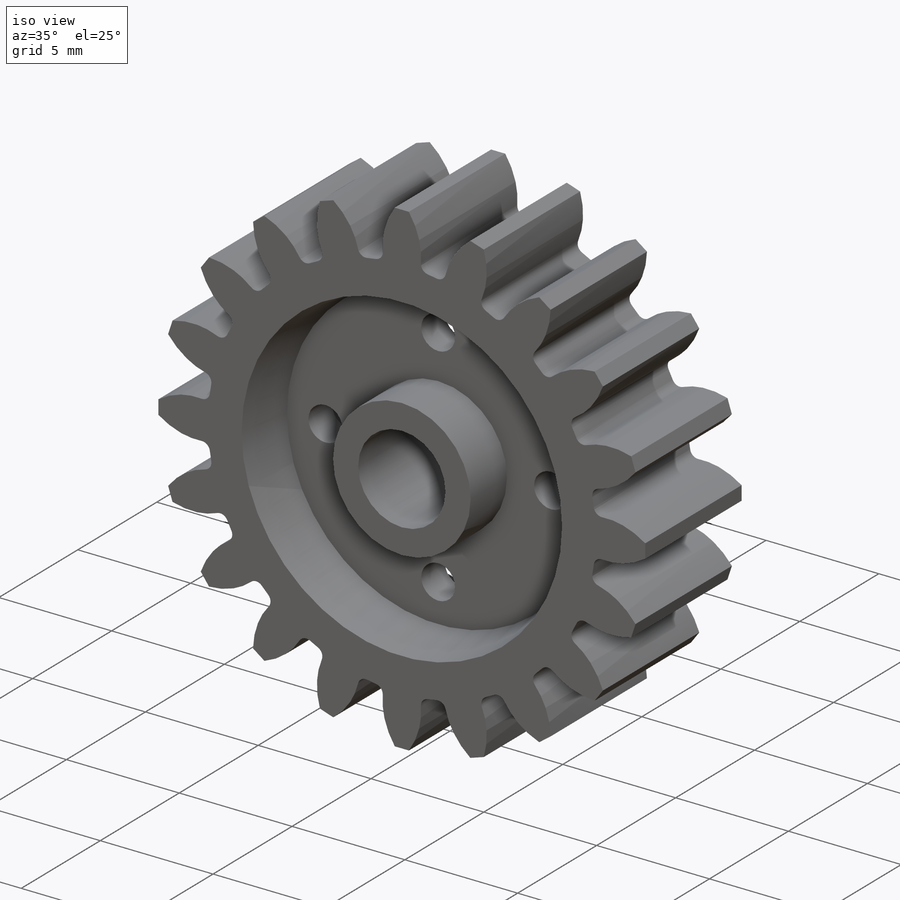
[diagram: iso view]
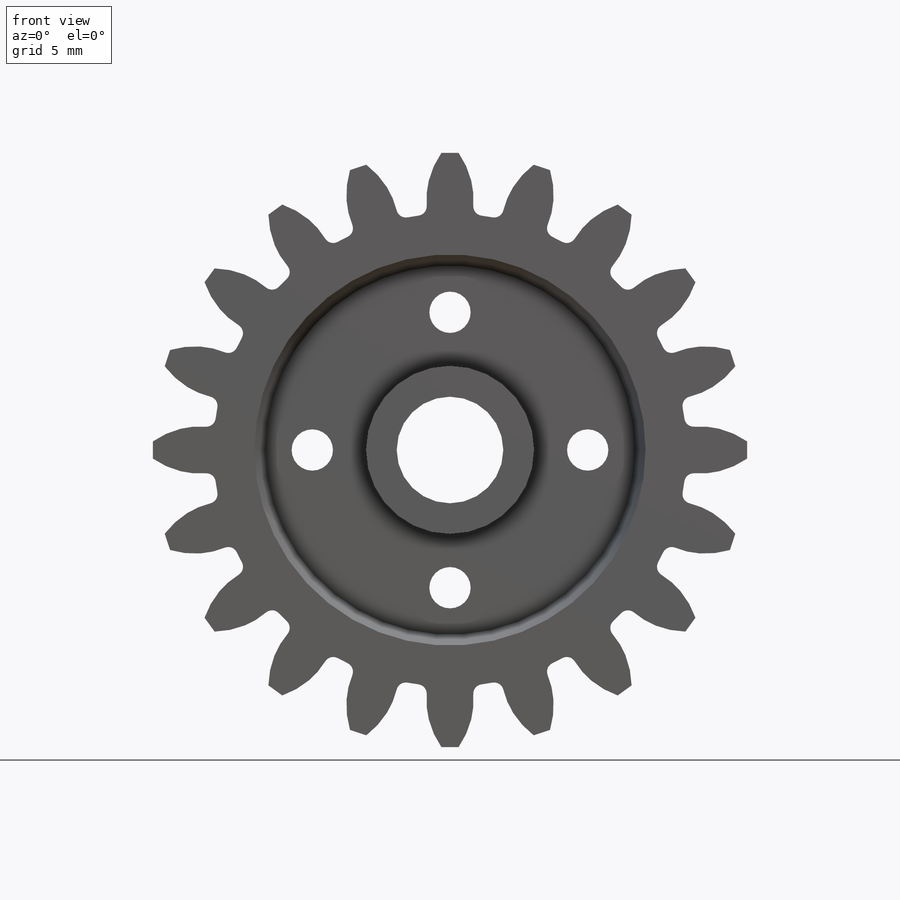
[diagram: front view]
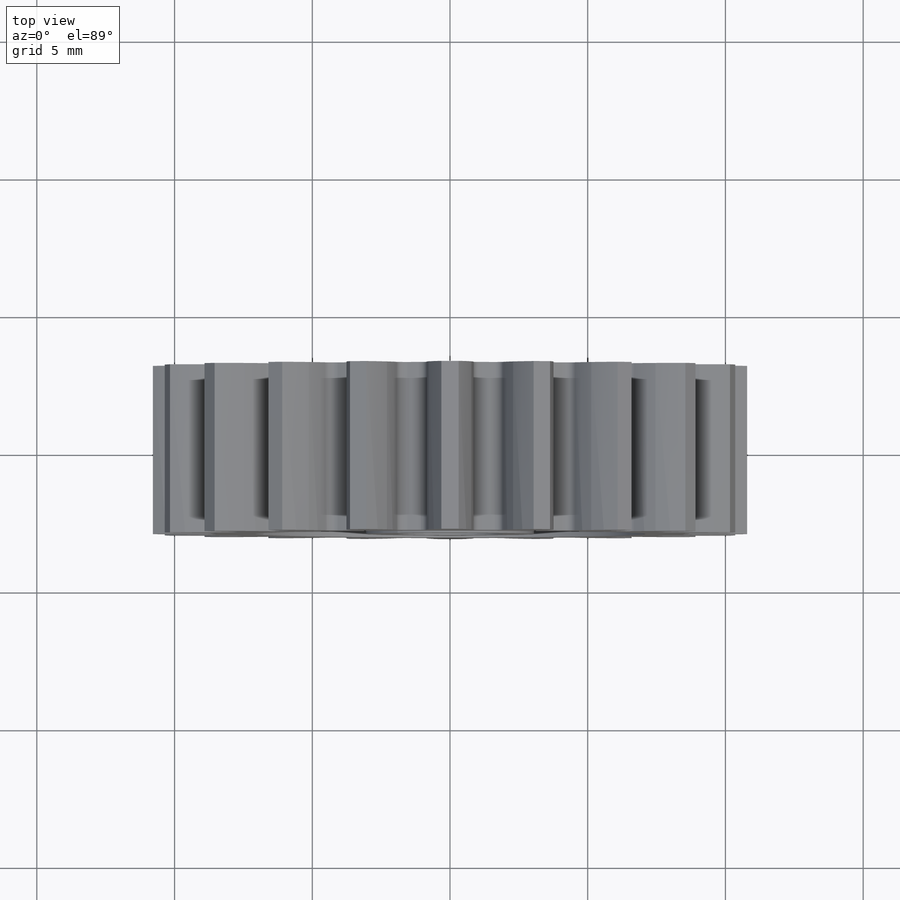
[diagram: top view]
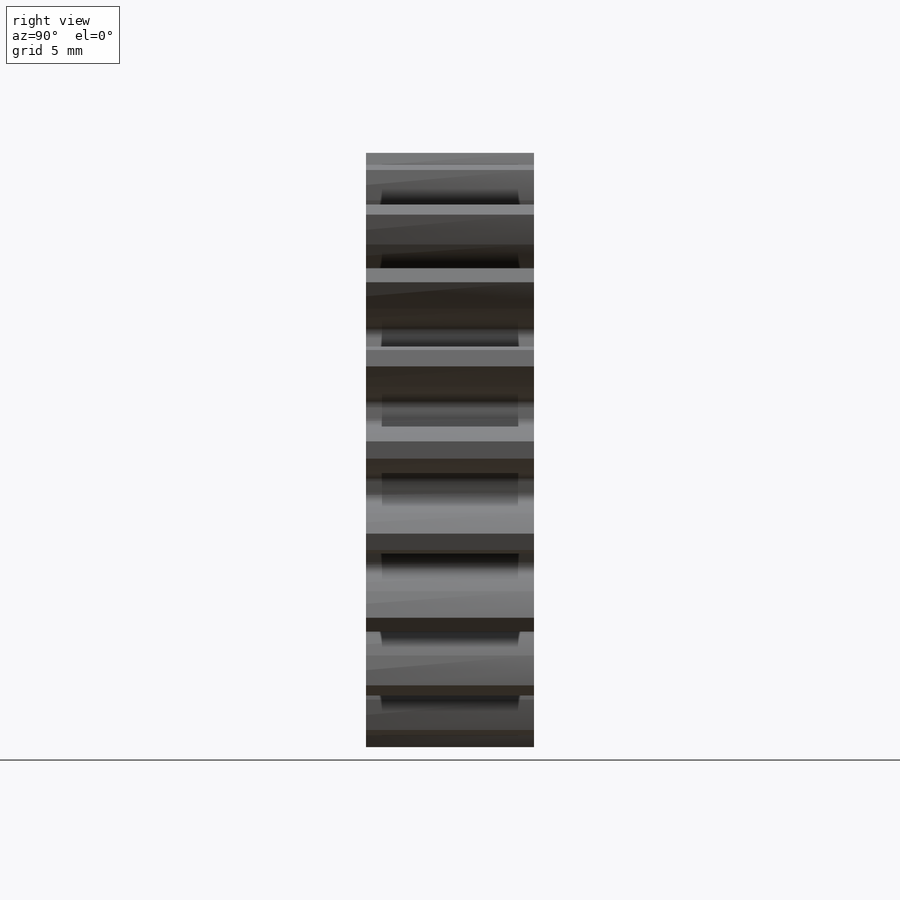
[diagram: right view]
SOLIDWORKS PART (.sldprt)
format: sldprt  version: not decoded by parser v0  size: 1,079,808 bytes
history: native  units: mm
features: sketch x9, cut_extrude x6, pattern_circular x2, material x1, extrude x1 + 1 further entry (+15 scaffold rows collapsed)
feature tree (35):
  scaffold x15  (default folders/planes/origin — collapsed)
  material  "Plain Carbon Steel"
  "Design Table"
  sketch  "Sketch1"  dims[D1=~55.208725mm D2=~11.938483mm]
  extrude  "BLANK DISK"  [1 undecoded]
  sketch  "Sketch2"  dims[c1.D1=~52.406303mm c1.D6=~23.868193mm c1.D16=~0.092603mm c1.D12=~3.083088mm c1.D2=~3.480618mm c1.D3=~314.159265mm c1.D4=~0.770772mm c1.D5=~0.770772mm c2.D6=~349.06585mm c2.D7=~349.06585mm c2.D8=~505.36051mm c3.D7=~349.06585mm c3.D8=~349.06585mm c3.D9=~1378.810109mm c3.D10=~1413.716694mm c3.D11=~1.537976mm c3.D12=~242.006635mm c3.D13=~492.027845mm c3.D14=~157.079633mm c3.D15=~157.079633mm c3.D17=~0.034316mm]
  cut_extrude  "GEAR TOOTH CUT"  [1 undecoded]
  pattern_circular  "GEAR TEETH REVOLVE"  [2 undecoded]
  sketch  "Sketch3"  dims[c1.HEX_SIZE=9.525mm c1.D1=3.87mm c1.D2=2.662mm c1.D3=1.331mm c1.D4=1.619mm c2.D3=~4.99999mm c2.D4=~4.99999mm c2.D5=~4.99999mm c2.D6=~4.99999mm]
  cut_extrude  "HUB EXTRUDE"  [1 undecoded]
  sketch  "Sketch4"  dims[D1=13.4mm D2=~8.000009mm]
  cut_extrude  "FRONT HOLLOW"  Depth=2.3mm
  sketch  "Sketch5"  dims[D1=13.4mm D2=~8.000009mm]
  cut_extrude  "BACK HOLLOW"  Depth=2.3mm
  sketch  "Sketch6"  dims[D1=14.2mm]
  sketch  "Sketch7"  dims[D1=14.2mm]
  sketch  "Sketch9"  dims[D1=6.1mm]
  cut_extrude  "BACK HUB"  [1 undecoded]
  pattern_circular  "FRONT LOFT"  [2 undecoded]
  sketch  "Sketch10"  dims[D1=6.1mm]
  cut_extrude  "FRONT HUB"  [1 undecoded]
decode coverage: 11 of 18 modeling features carry decoded parameters; 1 rows unclassified (native names shown)
note: ~ marks probable driven/reference dimensions
note: 9 parameter values undecoded
summary: no parameter record found for 5 features
note: suppression state not decoded; provenance and decode notes live in map.json
